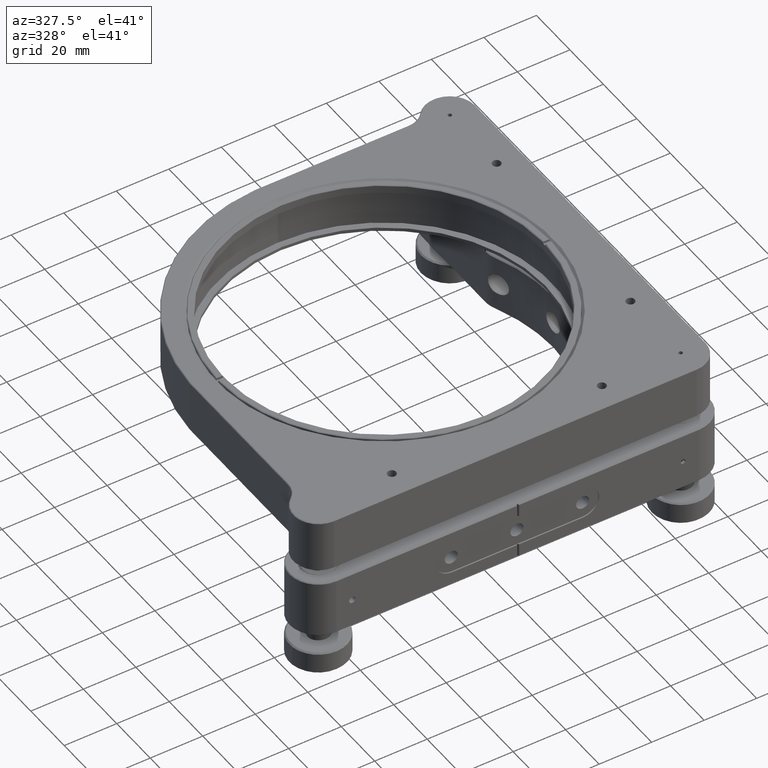
[diagram: clean part render]
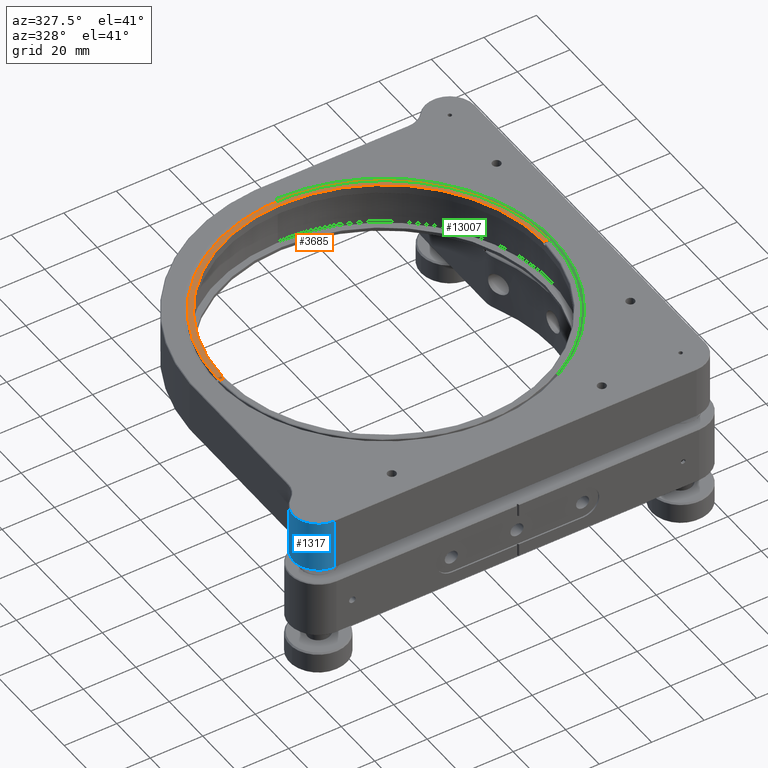
[diagram: same view with three faces highlighted in distinct colors, each labeled with its STEP entity id]
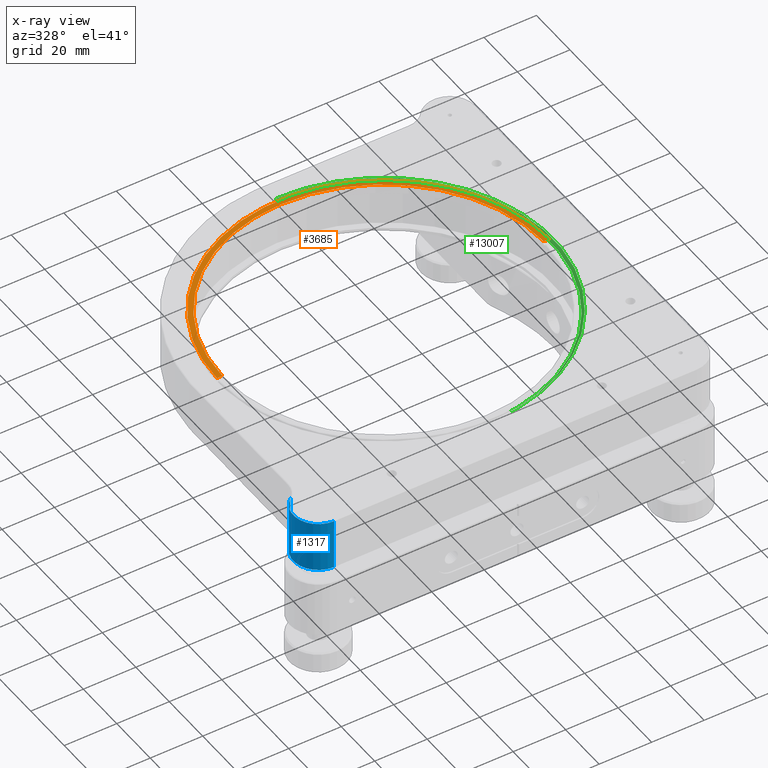
[diagram: x-ray of the same camera — body ghosted, the three highlighted faces saturated]
A machine part, auxiliary view with three faces highlighted in distinct colors.
The next image is the same camera in x-ray (body ghosted, the three faces saturated) — at least one of them is partly hidden behind the body in this view.
Their STEP definitions:

[orange] entity #3685 — the highlighted planar face has unit normal (0, 0, 1).
#433 = CIRCLE ( 'NONE', #15894, 61.25000000000000000 ) ;
#520 = FACE_OUTER_BOUND ( 'NONE', #8540, .T. ) ;
#710 = CARTESIAN_POINT ( 'NONE',  ( -2.775554640409769400E-14, -5.551115123125781440E-14, 35.39949493661168134 ) ) ;
#1878 = EDGE_CURVE ( 'NONE', #17143, #3370, #14260, .T. ) ;
#2054 = CARTESIAN_POINT ( 'NONE',  ( -50000.00000000001455, 0.5999999999999445777, 35.39949493661168134 ) ) ;
#2419 = AXIS2_PLACEMENT_3D ( 'NONE', #10214, #15777, #17400 ) ;
#2427 = CARTESIAN_POINT ( 'NONE',  ( -61.24706115398520012, 0.5999999999999445777, 35.39949493661168134 ) ) ;
#2821 = DIRECTION ( 'NONE',  ( -0.000000000000000000, -0.000000000000000000, -1.000000000000000000 ) ) ;
#3370 = VERTEX_POINT ( 'NONE', #5396 ) ;
#3566 = DIRECTION ( 'NONE',  ( -1.000000000000000000, -0.000000000000000000, -0.000000000000000000 ) ) ;
#3619 = DIRECTION ( 'NONE',  ( 0.000000000000000000, 0.000000000000000000, 1.000000000000000000 ) ) ;
#3685 = ADVANCED_FACE ( 'NONE', ( #520 ), #13230, .T. ) ;
#4193 = EDGE_CURVE ( 'NONE', #13985, #14993, #10620, .T. ) ;
#4797 = DIRECTION ( 'NONE',  ( 1.000000000000000000, 0.000000000000000000, 0.000000000000000000 ) ) ;
#4962 = AXIS2_PLACEMENT_3D ( 'NONE', #710, #3619, #5076 ) ;
#4972 = EDGE_CURVE ( 'NONE', #17143, #14993, #15837, .T. ) ;
#5076 = DIRECTION ( 'NONE',  ( 1.000000000000000000, 0.000000000000000000, -0.000000000000000000 ) ) ;
#5396 = CARTESIAN_POINT ( 'NONE',  ( 61.24706115398515038, 0.5999999999999445777, 35.39949493661168134 ) ) ;
#6021 = CARTESIAN_POINT ( 'NONE',  ( -63.24715408617220902, 0.5999999999999445777, 35.39949493661168134 ) ) ;
#6608 = ORIENTED_EDGE ( 'NONE', *, *, #1878, .F. ) ;
#8540 = EDGE_LOOP ( 'NONE', ( #6608, #12468, #17965, #12814 ) ) ;
#9869 = CARTESIAN_POINT ( 'NONE',  ( -2.775554640409769400E-14, -5.551115123125781440E-14, 35.39949493661168134 ) ) ;
#10068 = DIRECTION ( 'NONE',  ( -1.000000000000000000, -0.000000000000000000, -0.000000000000000000 ) ) ;
#10214 = CARTESIAN_POINT ( 'NONE',  ( -2.775554640409769400E-14, -5.551115123125781440E-14, 35.39949493661168134 ) ) ;
#10620 = LINE ( 'NONE', #16086, #14041 ) ;
#11443 = EDGE_CURVE ( 'NONE', #13985, #3370, #433, .T. ) ;
#12164 = CARTESIAN_POINT ( 'NONE',  ( 63.24715408617215218, 0.5999999999999445777, 35.39949493661168134 ) ) ;
#12468 = ORIENTED_EDGE ( 'NONE', *, *, #4972, .T. ) ;
#12814 = ORIENTED_EDGE ( 'NONE', *, *, #11443, .T. ) ;
#13230 = PLANE ( 'NONE',  #4962 ) ;
#13985 = VERTEX_POINT ( 'NONE', #2427 ) ;
#14041 = VECTOR ( 'NONE', #3566, 1000.000000000000000 ) ;
#14260 = LINE ( 'NONE', #2054, #17031 ) ;
#14993 = VERTEX_POINT ( 'NONE', #6021 ) ;
#15777 = DIRECTION ( 'NONE',  ( 0.000000000000000000, 0.000000000000000000, 1.000000000000000000 ) ) ;
#15837 = CIRCLE ( 'NONE', #2419, 63.25000000000005684 ) ;
#15894 = AXIS2_PLACEMENT_3D ( 'NONE', #9869, #2821, #4797 ) ;
#16086 = CARTESIAN_POINT ( 'NONE',  ( -50000.00000000001455, 0.5999999999999445777, 35.39949493661168134 ) ) ;
#17031 = VECTOR ( 'NONE', #10068, 1000.000000000000000 ) ;
#17143 = VERTEX_POINT ( 'NONE', #12164 ) ;
#17400 = DIRECTION ( 'NONE',  ( 1.000000000000000000, 0.000000000000000000, 0.000000000000000000 ) ) ;
#17965 = ORIENTED_EDGE ( 'NONE', *, *, #4193, .F. ) ;

[blue] entity #1317 — the highlighted cylindrical surface (edge-blend (fillet) strip) has radius 9.5 mm, axis along (-0, 0, -1).
#233 = ORIENTED_EDGE ( 'NONE', *, *, #13675, .T. ) ;
#453 = ORIENTED_EDGE ( 'NONE', *, *, #2100, .F. ) ;
#1212 = DIRECTION ( 'NONE',  ( 1.460576560598801016E-21, -3.453575010322097839E-36, 1.000000000000000000 ) ) ;
#1317 = ADVANCED_FACE ( 'NONE', ( #9110 ), #3623, .T. ) ;
#1689 = VERTEX_POINT ( 'NONE', #9820 ) ;
#1965 = CARTESIAN_POINT ( 'NONE',  ( -69.00000000000042633, -69.00000000000054001, 35.14949493661170266 ) ) ;
#2100 = EDGE_CURVE ( 'NONE', #6945, #1689, #4060, .T. ) ;
#2115 = VECTOR ( 'NONE', #6862, 1000.000000000000000 ) ;
#2735 = EDGE_CURVE ( 'NONE', #17349, #1689, #12302, .T. ) ;
#3548 = CARTESIAN_POINT ( 'NONE',  ( -74.92522070196554296, -61.57425023091970928, 15.64949493661167423 ) ) ;
#3560 = AXIS2_PLACEMENT_3D ( 'NONE', #1965, #10478, #13325 ) ;
#3623 = CYLINDRICAL_SURFACE ( 'NONE', #15577, 9.500000000000063949 ) ;
#4060 = LINE ( 'NONE', #6904, #14436 ) ;
#4325 = DIRECTION ( 'NONE',  ( -1.460576560598801016E-21, 3.453575010322097839E-36, -1.000000000000000000 ) ) ;
#6862 = DIRECTION ( 'NONE',  ( -1.460576560598801016E-21, 3.453575010322097839E-36, -1.000000000000000000 ) ) ;
#6904 = CARTESIAN_POINT ( 'NONE',  ( -69.00000000000041211, -78.50000000000052580, 35.39949493661167423 ) ) ;
#6945 = VERTEX_POINT ( 'NONE', #17988 ) ;
#7759 = DIRECTION ( 'NONE',  ( -1.460576560598801016E-21, 3.453575010322097839E-36, -1.000000000000000000 ) ) ;
#8170 = VERTEX_POINT ( 'NONE', #10615 ) ;
#8318 = EDGE_CURVE ( 'NONE', #8170, #17349, #13816, .T. ) ;
#8524 = DIRECTION ( 'NONE',  ( 0.000000000000000000, 1.000000000000000000, 0.000000000000000000 ) ) ;
#9110 = FACE_OUTER_BOUND ( 'NONE', #11537, .T. ) ;
#9820 = CARTESIAN_POINT ( 'NONE',  ( -69.00000000000041211, -78.50000000000052580, 15.64949493661167423 ) ) ;
#10478 = DIRECTION ( 'NONE',  ( -1.460576560598801016E-21, 3.453575010322097839E-36, -1.000000000000000000 ) ) ;
#10615 = CARTESIAN_POINT ( 'NONE',  ( -74.92522070196554296, -61.57425023091970928, 35.14949493661170266 ) ) ;
#11429 = AXIS2_PLACEMENT_3D ( 'NONE', #15201, #1212, #8524 ) ;
#11537 = EDGE_LOOP ( 'NONE', ( #15710, #15021, #453, #233 ) ) ;
#11955 = DIRECTION ( 'NONE',  ( 0.000000000000000000, -1.000000000000000000, 0.000000000000000000 ) ) ;
#12302 = CIRCLE ( 'NONE', #11429, 9.500000000000063949 ) ;
#13325 = DIRECTION ( 'NONE',  ( 0.000000000000000000, 1.000000000000000000, 0.000000000000000000 ) ) ;
#13675 = EDGE_CURVE ( 'NONE', #6945, #8170, #17262, .T. ) ;
#13816 = LINE ( 'NONE', #16357, #2115 ) ;
#14436 = VECTOR ( 'NONE', #4325, 1000.000000000000000 ) ;
#14685 = CARTESIAN_POINT ( 'NONE',  ( -69.00000000000042633, -69.00000000000054001, 35.39949493661167423 ) ) ;
#15021 = ORIENTED_EDGE ( 'NONE', *, *, #2735, .T. ) ;
#15201 = CARTESIAN_POINT ( 'NONE',  ( -69.00000000000042633, -69.00000000000054001, 15.64949493661167423 ) ) ;
#15577 = AXIS2_PLACEMENT_3D ( 'NONE', #14685, #7759, #11955 ) ;
#15710 = ORIENTED_EDGE ( 'NONE', *, *, #8318, .T. ) ;
#16357 = CARTESIAN_POINT ( 'NONE',  ( -74.92522070196554296, -61.57425023091970928, 35.39949493661167423 ) ) ;
#17262 = CIRCLE ( 'NONE', #3560, 9.500000000000063949 ) ;
#17349 = VERTEX_POINT ( 'NONE', #3548 ) ;
#17988 = CARTESIAN_POINT ( 'NONE',  ( -69.00000000000041211, -78.50000000000052580, 35.14949493661170266 ) ) ;

[green] entity #13007 — the highlighted conical surface has half-angle 45 deg.
#106 = DIRECTION ( 'NONE',  ( 1.460576560598801016E-21, -3.453575010322097839E-36, 1.000000000000000000 ) ) ;
#1713 = EDGE_LOOP ( 'NONE', ( #14528, #2413, #10844, #9502 ) ) ;
#2095 = VECTOR ( 'NONE', #5526, 999.9999999999998863 ) ;
#2385 = CARTESIAN_POINT ( 'NONE',  ( -2.775554640409759618E-14, -5.551115123125781440E-14, 35.39949493661167423 ) ) ;
#2413 = ORIENTED_EDGE ( 'NONE', *, *, #13992, .T. ) ;
#2484 = DIRECTION ( 'NONE',  ( -6.383782391594642219E-16, 1.000000000000000000, 0.000000000000000000 ) ) ;
#2661 = FACE_OUTER_BOUND ( 'NONE', #1713, .T. ) ;
#3845 = VERTEX_POINT ( 'NONE', #13326 ) ;
#3883 = EDGE_CURVE ( 'NONE', #8013, #3845, #4095, .T. ) ;
#4095 = CIRCLE ( 'NONE', #12865, 64.50000000000044054 ) ;
#4428 = CARTESIAN_POINT ( 'NONE',  ( -6.829256605130041711E-14, 63.50000000000037659, 34.39949493661168134 ) ) ;
#4529 = EDGE_CURVE ( 'NONE', #14425, #18008, #5343, .T. ) ;
#5342 = CONICAL_SURFACE ( 'NONE', #7980, 64.50000000000044054, 0.7853981633974500554 ) ;
#5343 = CIRCLE ( 'NONE', #16709, 63.50000000000043343 ) ;
#5526 = DIRECTION ( 'NONE',  ( 3.648070090316278316E-16, -0.7071067811865511255, 0.7071067811865439090 ) ) ;
#7576 = VECTOR ( 'NONE', #13693, 999.9999999999998863 ) ;
#7980 = AXIS2_PLACEMENT_3D ( 'NONE', #2385, #13557, #2484 ) ;
#8013 = VERTEX_POINT ( 'NONE', #16903 ) ;
#8034 = CARTESIAN_POINT ( 'NONE',  ( -6.893094282988332288E-14, 64.50000000000038369, 35.39949493661167423 ) ) ;
#8430 = CARTESIAN_POINT ( 'NONE',  ( -2.775554786467415858E-14, -5.551115123125781440E-14, 34.39949493661168134 ) ) ;
#9502 = ORIENTED_EDGE ( 'NONE', *, *, #17824, .F. ) ;
#9756 = LINE ( 'NONE', #8034, #7576 ) ;
#10844 = ORIENTED_EDGE ( 'NONE', *, *, #3883, .T. ) ;
#11075 = CARTESIAN_POINT ( 'NONE',  ( 5.004951097609419351E-15, -63.50000000000005684, 34.39949493661168134 ) ) ;
#11262 = DIRECTION ( 'NONE',  ( -6.383782391594642219E-16, 1.000000000000000000, 0.000000000000000000 ) ) ;
#12865 = AXIS2_PLACEMENT_3D ( 'NONE', #14104, #13596, #17768 ) ;
#13007 = ADVANCED_FACE ( 'NONE', ( #2661 ), #5342, .F. ) ;
#13326 = CARTESIAN_POINT ( 'NONE',  ( -6.893094282988332288E-14, 64.50000000000038369, 35.39949493661167423 ) ) ;
#13499 = CARTESIAN_POINT ( 'NONE',  ( 5.520878167187652718E-15, -64.50000000000049738, 35.39949493661167423 ) ) ;
#13557 = DIRECTION ( 'NONE',  ( 1.460576560598801016E-21, -3.453575010322097839E-36, 1.000000000000000000 ) ) ;
#13596 = DIRECTION ( 'NONE',  ( 1.460576560598801016E-21, -3.453575010322097839E-36, 1.000000000000000000 ) ) ;
#13693 = DIRECTION ( 'NONE',  ( -4.514005490879966237E-16, 0.7071067811865511255, 0.7071067811865439090 ) ) ;
#13992 = EDGE_CURVE ( 'NONE', #14425, #8013, #16583, .T. ) ;
#14104 = CARTESIAN_POINT ( 'NONE',  ( -2.775554640409759618E-14, -5.551115123125781440E-14, 35.39949493661167423 ) ) ;
#14425 = VERTEX_POINT ( 'NONE', #11075 ) ;
#14528 = ORIENTED_EDGE ( 'NONE', *, *, #4529, .F. ) ;
#16583 = LINE ( 'NONE', #13499, #2095 ) ;
#16709 = AXIS2_PLACEMENT_3D ( 'NONE', #8430, #106, #11262 ) ;
#16903 = CARTESIAN_POINT ( 'NONE',  ( 5.520878167187652718E-15, -64.50000000000049738, 35.39949493661167423 ) ) ;
#17768 = DIRECTION ( 'NONE',  ( -6.383782391594642219E-16, 1.000000000000000000, 0.000000000000000000 ) ) ;
#17824 = EDGE_CURVE ( 'NONE', #18008, #3845, #9756, .T. ) ;
#18008 = VERTEX_POINT ( 'NONE', #4428 ) ;